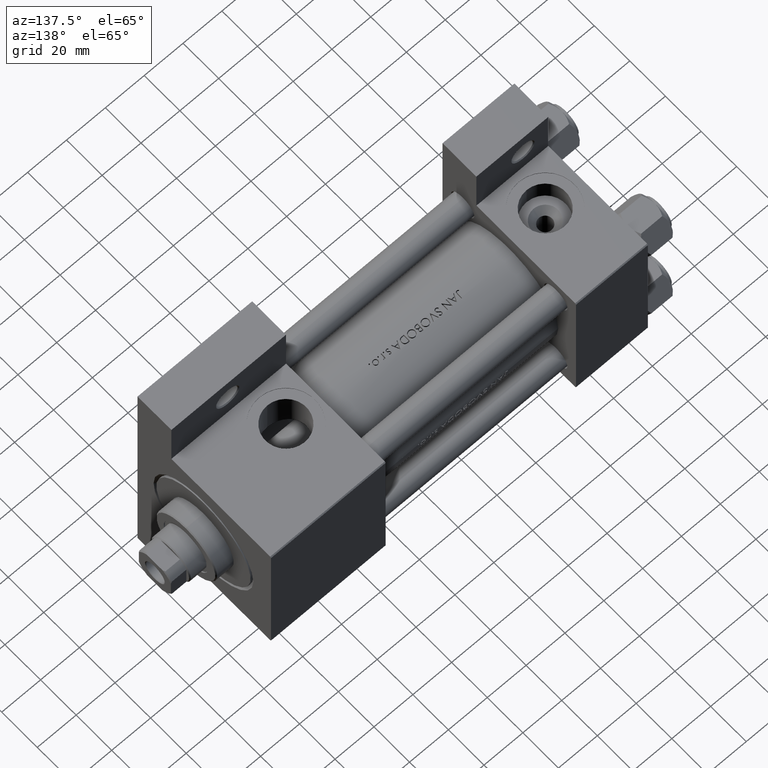
[diagram: clean part render]
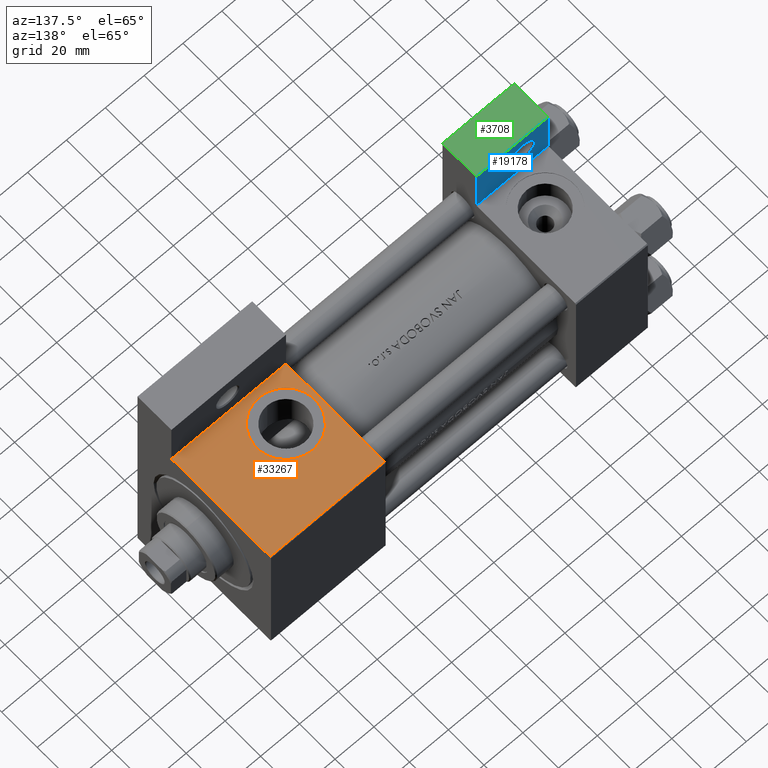
[diagram: same view with three faces highlighted in distinct colors, each labeled with its STEP entity id]
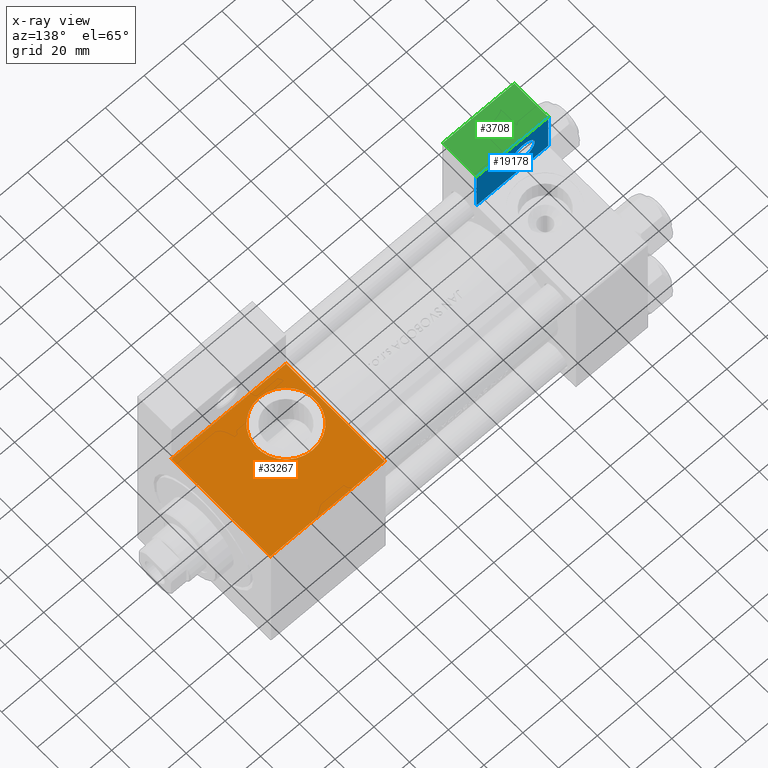
[diagram: x-ray of the same camera — body ghosted, the three highlighted faces saturated]
A machine part, auxiliary view with three faces highlighted in distinct colors.
The next image is the same camera in x-ray (body ghosted, the three faces saturated) — at least one of them is partly hidden behind the body in this view.
Their STEP definitions:

[orange] entity #33267 — the highlighted planar face has unit normal (0, -0, -1).
#161 = DIRECTION ( 'NONE',  ( 0.000000000000000000, -9.251858538542972814E-17, -1.000000000000000000 ) ) ;
#915 = DIRECTION ( 'NONE',  ( 0.000000000000000000, 9.251858538542972814E-17, 1.000000000000000000 ) ) ;
#2337 = DIRECTION ( 'NONE',  ( 0.000000000000000000, 0.000000000000000000, -1.000000000000000000 ) ) ;
#2675 = VECTOR ( 'NONE', #161, 1000.000000000000000 ) ;
#3207 = EDGE_CURVE ( 'NONE', #32745, #14146, #42852, .T. ) ;
#4673 = FACE_BOUND ( 'NONE', #21508, .T. ) ;
#4810 = VERTEX_POINT ( 'NONE', #13889 ) ;
#5834 = CARTESIAN_POINT ( 'NONE',  ( 152.0000000000000284, -37.50000000000000000, 3.469446951953615767E-15 ) ) ;
#6124 = LINE ( 'NONE', #18080, #7439 ) ;
#6744 = EDGE_LOOP ( 'NONE', ( #16852, #29930, #22475, #13569 ) ) ;
#7439 = VECTOR ( 'NONE', #29284, 1000.000000000000000 ) ;
#9051 = ORIENTED_EDGE ( 'NONE', *, *, #36774, .F. ) ;
#9379 = EDGE_CURVE ( 'NONE', #4810, #26696, #22056, .T. ) ;
#10747 = DIRECTION ( 'NONE',  ( 0.000000000000000000, 0.000000000000000000, -1.000000000000000000 ) ) ;
#11745 = CIRCLE ( 'NONE', #29211, 15.00000000000002487 ) ;
#11877 = CARTESIAN_POINT ( 'NONE',  ( 194.0000000000000000, -37.50000000000000000, 37.49999999999997868 ) ) ;
#13569 = ORIENTED_EDGE ( 'NONE', *, *, #3207, .T. ) ;
#13889 = CARTESIAN_POINT ( 'NONE',  ( 152.0000000000000284, -37.50000000000000000, -15.00000000000002132 ) ) ;
#14146 = VERTEX_POINT ( 'NONE', #14625 ) ;
#14625 = CARTESIAN_POINT ( 'NONE',  ( 194.0000000000000000, -37.50000000000000711, -18.50000000000000355 ) ) ;
#14721 = DIRECTION ( 'NONE',  ( 0.000000000000000000, -1.000000000000000000, -8.673617379884036705E-17 ) ) ;
#15760 = DIRECTION ( 'NONE',  ( 0.000000000000000000, -9.251858538542972814E-17, -1.000000000000000000 ) ) ;
#16224 = LINE ( 'NONE', #27445, #25800 ) ;
#16678 = DIRECTION ( 'NONE',  ( 1.000000000000000000, -1.176083712526648949E-16, 0.000000000000000000 ) ) ;
#16852 = ORIENTED_EDGE ( 'NONE', *, *, #41790, .F. ) ;
#18080 = CARTESIAN_POINT ( 'NONE',  ( 194.0000000000000000, -37.50000000000000000, 36.99999999999997868 ) ) ;
#18932 = AXIS2_PLACEMENT_3D ( 'NONE', #34818, #46258, #915 ) ;
#19630 = PLANE ( 'NONE',  #18932 ) ;
#21508 = EDGE_LOOP ( 'NONE', ( #47489, #9051 ) ) ;
#22056 = CIRCLE ( 'NONE', #46767, 15.00000000000002487 ) ;
#22475 = ORIENTED_EDGE ( 'NONE', *, *, #46274, .T. ) ;
#22676 = VECTOR ( 'NONE', #16678, 1000.000000000000000 ) ;
#23319 = LINE ( 'NONE', #11877, #2675 ) ;
#24092 = EDGE_CURVE ( 'NONE', #48354, #32235, #6124, .T. ) ;
#25800 = VECTOR ( 'NONE', #15760, 1000.000000000000000 ) ;
#25935 = CARTESIAN_POINT ( 'NONE',  ( 152.0000000000000284, -37.50000000000000000, 3.469446951953615767E-15 ) ) ;
#26696 = VERTEX_POINT ( 'NONE', #28683 ) ;
#27445 = CARTESIAN_POINT ( 'NONE',  ( 135.0000000000000000, -37.50000000000000000, 37.49999999999997868 ) ) ;
#28683 = CARTESIAN_POINT ( 'NONE',  ( 152.0000000000000284, -37.50000000000000000, 15.00000000000002842 ) ) ;
#29211 = AXIS2_PLACEMENT_3D ( 'NONE', #5834, #40703, #2337 ) ;
#29284 = DIRECTION ( 'NONE',  ( -1.000000000000000000, 0.000000000000000000, 0.000000000000000000 ) ) ;
#29930 = ORIENTED_EDGE ( 'NONE', *, *, #24092, .T. ) ;
#31875 = CARTESIAN_POINT ( 'NONE',  ( 135.0000000000000000, -37.50000000000000000, -18.50000000000000000 ) ) ;
#32235 = VERTEX_POINT ( 'NONE', #37218 ) ;
#32638 = CARTESIAN_POINT ( 'NONE',  ( 135.0000000000000000, -37.50000000000000000, -18.50000000000000000 ) ) ;
#32745 = VERTEX_POINT ( 'NONE', #32638 ) ;
#33267 = ADVANCED_FACE ( 'NONE', ( #4673, #35049 ), #19630, .F. ) ;
#34818 = CARTESIAN_POINT ( 'NONE',  ( 194.0000000000000000, -37.50000000000000000, 37.49999999999997868 ) ) ;
#35049 = FACE_OUTER_BOUND ( 'NONE', #6744, .T. ) ;
#36774 = EDGE_CURVE ( 'NONE', #26696, #4810, #11745, .T. ) ;
#37218 = CARTESIAN_POINT ( 'NONE',  ( 135.0000000000000000, -37.50000000000000000, 36.99999999999997868 ) ) ;
#40134 = CARTESIAN_POINT ( 'NONE',  ( 194.0000000000000000, -37.50000000000000000, 36.99999999999997868 ) ) ;
#40703 = DIRECTION ( 'NONE',  ( 0.000000000000000000, -1.000000000000000000, -8.673617379884036705E-17 ) ) ;
#41790 = EDGE_CURVE ( 'NONE', #48354, #14146, #23319, .T. ) ;
#42852 = LINE ( 'NONE', #31875, #22676 ) ;
#46258 = DIRECTION ( 'NONE',  ( 0.000000000000000000, 1.000000000000000000, -9.251858538542972814E-17 ) ) ;
#46274 = EDGE_CURVE ( 'NONE', #32235, #32745, #16224, .T. ) ;
#46767 = AXIS2_PLACEMENT_3D ( 'NONE', #25935, #14721, #10747 ) ;
#47489 = ORIENTED_EDGE ( 'NONE', *, *, #9379, .F. ) ;
#48354 = VERTEX_POINT ( 'NONE', #40134 ) ;

[blue] entity #19178 — the highlighted planar face has unit normal (0, -1, 0).
#357 = CARTESIAN_POINT ( 'NONE',  ( 37.00000000000000000, -37.50000000000000000, -18.50000000000000355 ) ) ;
#1490 = DIRECTION ( 'NONE',  ( -1.000000000000000000, 0.000000000000000000, -0.000000000000000000 ) ) ;
#1612 = LINE ( 'NONE', #43963, #10777 ) ;
#1915 = AXIS2_PLACEMENT_3D ( 'NONE', #24221, #43644, #24705 ) ;
#4084 = VERTEX_POINT ( 'NONE', #357 ) ;
#4450 = DIRECTION ( 'NONE',  ( -0.000000000000000000, 1.000000000000000000, 0.000000000000000000 ) ) ;
#5399 = EDGE_CURVE ( 'NONE', #25421, #28308, #18774, .T. ) ;
#6044 = DIRECTION ( 'NONE',  ( -1.000000000000000000, 0.000000000000000000, 0.000000000000000000 ) ) ;
#6661 = LINE ( 'NONE', #21853, #17062 ) ;
#8477 = EDGE_LOOP ( 'NONE', ( #8633, #46531 ) ) ;
#8633 = ORIENTED_EDGE ( 'NONE', *, *, #5399, .T. ) ;
#10777 = VECTOR ( 'NONE', #13346, 1000.000000000000000 ) ;
#10843 = AXIS2_PLACEMENT_3D ( 'NONE', #44642, #48126, #6044 ) ;
#11654 = DIRECTION ( 'NONE',  ( -1.000000000000000000, 0.000000000000000000, 0.000000000000000000 ) ) ;
#12728 = FACE_OUTER_BOUND ( 'NONE', #22857, .T. ) ;
#13346 = DIRECTION ( 'NONE',  ( 4.278042683914906889E-17, -1.000000000000000000, 0.000000000000000000 ) ) ;
#15376 = CARTESIAN_POINT ( 'NONE',  ( -7.145701223179000102E-16, -37.50000000000001421, -18.49999999999999645 ) ) ;
#15559 = CARTESIAN_POINT ( 'NONE',  ( -7.145701223179004046E-16, -37.50000000000000711, -18.50000000000000355 ) ) ;
#17062 = VECTOR ( 'NONE', #18132, 1000.000000000000000 ) ;
#18132 = DIRECTION ( 'NONE',  ( 1.000000000000000000, 0.000000000000000000, 0.000000000000000000 ) ) ;
#18774 = CIRCLE ( 'NONE', #10843, 5.999500000000022482 ) ;
#18862 = ORIENTED_EDGE ( 'NONE', *, *, #20614, .T. ) ;
#19178 = ADVANCED_FACE ( 'NONE', ( #31881, #12728 ), #28390, .F. ) ;
#19879 = LINE ( 'NONE', #39278, #27296 ) ;
#20614 = EDGE_CURVE ( 'NONE', #4084, #21933, #33822, .T. ) ;
#21583 = ORIENTED_EDGE ( 'NONE', *, *, #27055, .T. ) ;
#21853 = CARTESIAN_POINT ( 'NONE',  ( 3.977209754999747208E-16, -63.50000000000000000, -18.50000000000000355 ) ) ;
#21933 = VERTEX_POINT ( 'NONE', #15559 ) ;
#22857 = EDGE_LOOP ( 'NONE', ( #45834, #18862, #39317, #21583 ) ) ;
#24221 = CARTESIAN_POINT ( 'NONE',  ( 12.99999999999999822, -51.00000000000001421, -18.50000000000000000 ) ) ;
#24705 = DIRECTION ( 'NONE',  ( -1.000000000000000000, 0.000000000000000000, 0.000000000000000000 ) ) ;
#25421 = VERTEX_POINT ( 'NONE', #34513 ) ;
#27055 = EDGE_CURVE ( 'NONE', #36158, #36549, #6661, .T. ) ;
#27296 = VECTOR ( 'NONE', #4450, 1000.000000000000000 ) ;
#27671 = CARTESIAN_POINT ( 'NONE',  ( 0.000000000000000000, 0.000000000000000000, -18.50000000000000000 ) ) ;
#28308 = VERTEX_POINT ( 'NONE', #35693 ) ;
#28390 = PLANE ( 'NONE',  #33631 ) ;
#31869 = CARTESIAN_POINT ( 'NONE',  ( 3.977209754999747208E-16, -63.50000000000000000, -18.50000000000000355 ) ) ;
#31881 = FACE_BOUND ( 'NONE', #8477, .T. ) ;
#33631 = AXIS2_PLACEMENT_3D ( 'NONE', #27671, #43586, #1490 ) ;
#33822 = LINE ( 'NONE', #15376, #40845 ) ;
#34513 = CARTESIAN_POINT ( 'NONE',  ( 18.99950000000001893, -51.00000000000001421, -18.50000000000000000 ) ) ;
#35693 = CARTESIAN_POINT ( 'NONE',  ( 7.000499999999975742, -51.00000000000001421, -18.50000000000000000 ) ) ;
#36158 = VERTEX_POINT ( 'NONE', #31869 ) ;
#36549 = VERTEX_POINT ( 'NONE', #37031 ) ;
#37031 = CARTESIAN_POINT ( 'NONE',  ( 37.00000000000000000, -63.50000000000000000, -18.50000000000000355 ) ) ;
#39278 = CARTESIAN_POINT ( 'NONE',  ( 37.00000000000000000, -63.49999999999998579, -18.50000000000000355 ) ) ;
#39317 = ORIENTED_EDGE ( 'NONE', *, *, #48830, .T. ) ;
#40234 = EDGE_CURVE ( 'NONE', #36549, #4084, #19879, .T. ) ;
#40845 = VECTOR ( 'NONE', #11654, 1000.000000000000000 ) ;
#42737 = EDGE_CURVE ( 'NONE', #28308, #25421, #44075, .T. ) ;
#43586 = DIRECTION ( 'NONE',  ( 0.000000000000000000, 0.000000000000000000, -1.000000000000000000 ) ) ;
#43644 = DIRECTION ( 'NONE',  ( 0.000000000000000000, 0.000000000000000000, -1.000000000000000000 ) ) ;
#43963 = CARTESIAN_POINT ( 'NONE',  ( 3.977209754999744250E-16, -63.49999999999998579, -18.50000000000000355 ) ) ;
#44075 = CIRCLE ( 'NONE', #1915, 5.999500000000022482 ) ;
#44642 = CARTESIAN_POINT ( 'NONE',  ( 12.99999999999999822, -51.00000000000001421, -18.50000000000000000 ) ) ;
#45834 = ORIENTED_EDGE ( 'NONE', *, *, #40234, .T. ) ;
#46531 = ORIENTED_EDGE ( 'NONE', *, *, #42737, .T. ) ;
#48126 = DIRECTION ( 'NONE',  ( 0.000000000000000000, 0.000000000000000000, -1.000000000000000000 ) ) ;
#48830 = EDGE_CURVE ( 'NONE', #21933, #36158, #1612, .T. ) ;

[green] entity #3708 — the highlighted planar face has unit normal (0, 0, 1).
#847 = ORIENTED_EDGE ( 'NONE', *, *, #27055, .F. ) ;
#2111 = ORIENTED_EDGE ( 'NONE', *, *, #18976, .T. ) ;
#3708 = ADVANCED_FACE ( 'NONE', ( #7900 ), #23090, .T. ) ;
#4716 = LINE ( 'NONE', #35572, #35449 ) ;
#5782 = VECTOR ( 'NONE', #45999, 1000.000000000000000 ) ;
#5813 = EDGE_CURVE ( 'NONE', #36549, #41182, #4716, .T. ) ;
#6661 = LINE ( 'NONE', #21853, #17062 ) ;
#7106 = ORIENTED_EDGE ( 'NONE', *, *, #5813, .F. ) ;
#7900 = FACE_OUTER_BOUND ( 'NONE', #10241, .T. ) ;
#10241 = EDGE_LOOP ( 'NONE', ( #847, #2111, #27773, #7106 ) ) ;
#11463 = VECTOR ( 'NONE', #17853, 1000.000000000000000 ) ;
#11986 = CARTESIAN_POINT ( 'NONE',  ( 37.00000000000000000, -63.50000000000000000, -37.49999999999999289 ) ) ;
#17062 = VECTOR ( 'NONE', #18132, 1000.000000000000000 ) ;
#17853 = DIRECTION ( 'NONE',  ( -1.000000000000000000, -0.000000000000000000, -0.000000000000000000 ) ) ;
#18132 = DIRECTION ( 'NONE',  ( 1.000000000000000000, 0.000000000000000000, 0.000000000000000000 ) ) ;
#18976 = EDGE_CURVE ( 'NONE', #36158, #43489, #19835, .T. ) ;
#19342 = DIRECTION ( 'NONE',  ( 0.000000000000000000, -1.734723475976806848E-16, -1.000000000000000000 ) ) ;
#19835 = LINE ( 'NONE', #30807, #5782 ) ;
#21853 = CARTESIAN_POINT ( 'NONE',  ( 3.977209754999747208E-16, -63.50000000000000000, -18.50000000000000355 ) ) ;
#22094 = DIRECTION ( 'NONE',  ( 0.000000000000000000, -1.000000000000000000, 1.734723475976806848E-16 ) ) ;
#23090 = PLANE ( 'NONE',  #33846 ) ;
#25831 = CARTESIAN_POINT ( 'NONE',  ( 3.977209754999747208E-16, -63.50000000000000000, -37.49999999999999289 ) ) ;
#27055 = EDGE_CURVE ( 'NONE', #36158, #36549, #6661, .T. ) ;
#27773 = ORIENTED_EDGE ( 'NONE', *, *, #41666, .F. ) ;
#30807 = CARTESIAN_POINT ( 'NONE',  ( 3.977209754999747208E-16, -63.49999999999998579, 26.72167621838007889 ) ) ;
#31869 = CARTESIAN_POINT ( 'NONE',  ( 3.977209754999747208E-16, -63.50000000000000000, -18.50000000000000355 ) ) ;
#33846 = AXIS2_PLACEMENT_3D ( 'NONE', #34535, #22094, #19342 ) ;
#34535 = CARTESIAN_POINT ( 'NONE',  ( 3.977209754999747208E-16, -63.49999999999998579, 26.72167621838007889 ) ) ;
#35449 = VECTOR ( 'NONE', #46301, 1000.000000000000000 ) ;
#35572 = CARTESIAN_POINT ( 'NONE',  ( 37.00000000000000000, -63.49999999999998579, 26.72167621838007889 ) ) ;
#36158 = VERTEX_POINT ( 'NONE', #31869 ) ;
#36549 = VERTEX_POINT ( 'NONE', #37031 ) ;
#37030 = LINE ( 'NONE', #25831, #11463 ) ;
#37031 = CARTESIAN_POINT ( 'NONE',  ( 37.00000000000000000, -63.50000000000000000, -18.50000000000000355 ) ) ;
#41182 = VERTEX_POINT ( 'NONE', #11986 ) ;
#41666 = EDGE_CURVE ( 'NONE', #41182, #43489, #37030, .T. ) ;
#43489 = VERTEX_POINT ( 'NONE', #46740 ) ;
#45999 = DIRECTION ( 'NONE',  ( 0.000000000000000000, -1.734723475976806848E-16, -1.000000000000000000 ) ) ;
#46301 = DIRECTION ( 'NONE',  ( 0.000000000000000000, -1.734723475976806848E-16, -1.000000000000000000 ) ) ;
#46740 = CARTESIAN_POINT ( 'NONE',  ( 3.977209754999747208E-16, -63.50000000000000000, -37.49999999999999289 ) ) ;